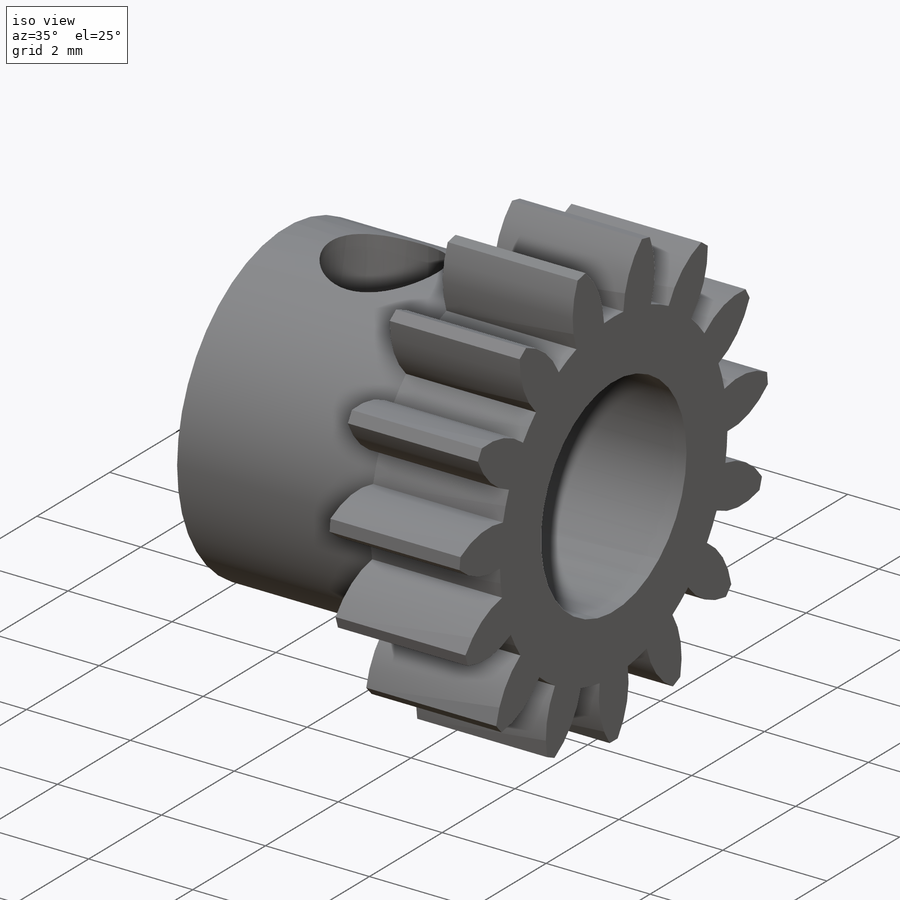
[diagram: iso view]
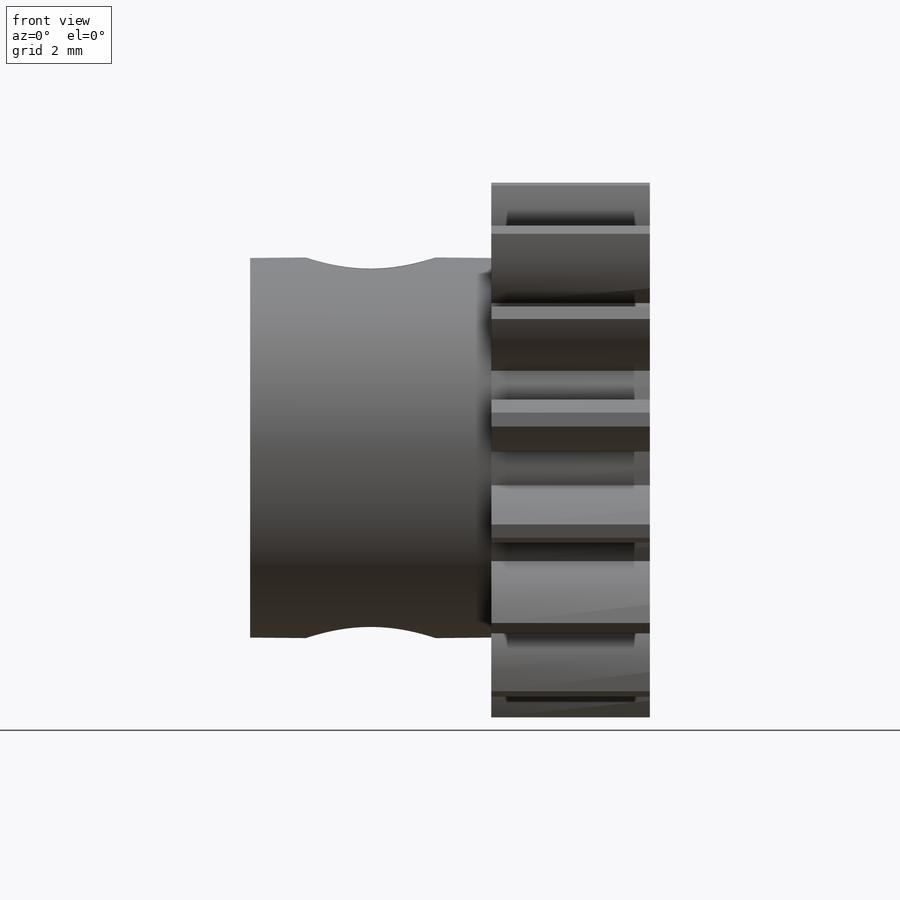
[diagram: front view]
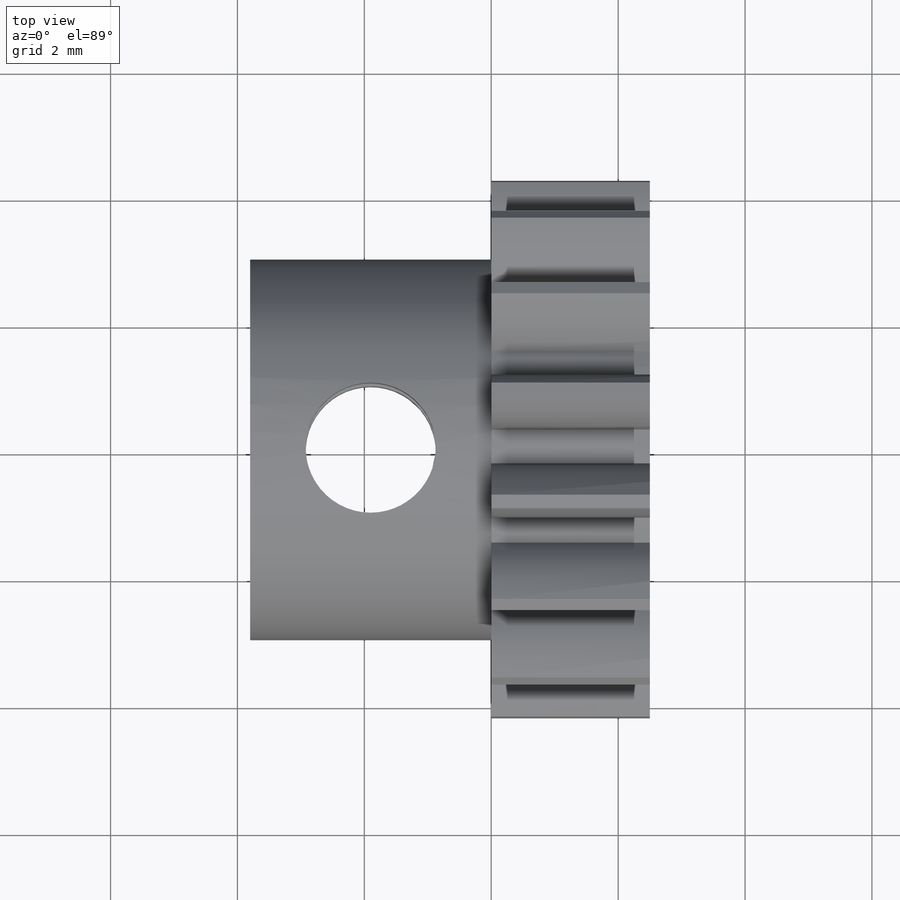
[diagram: top view]
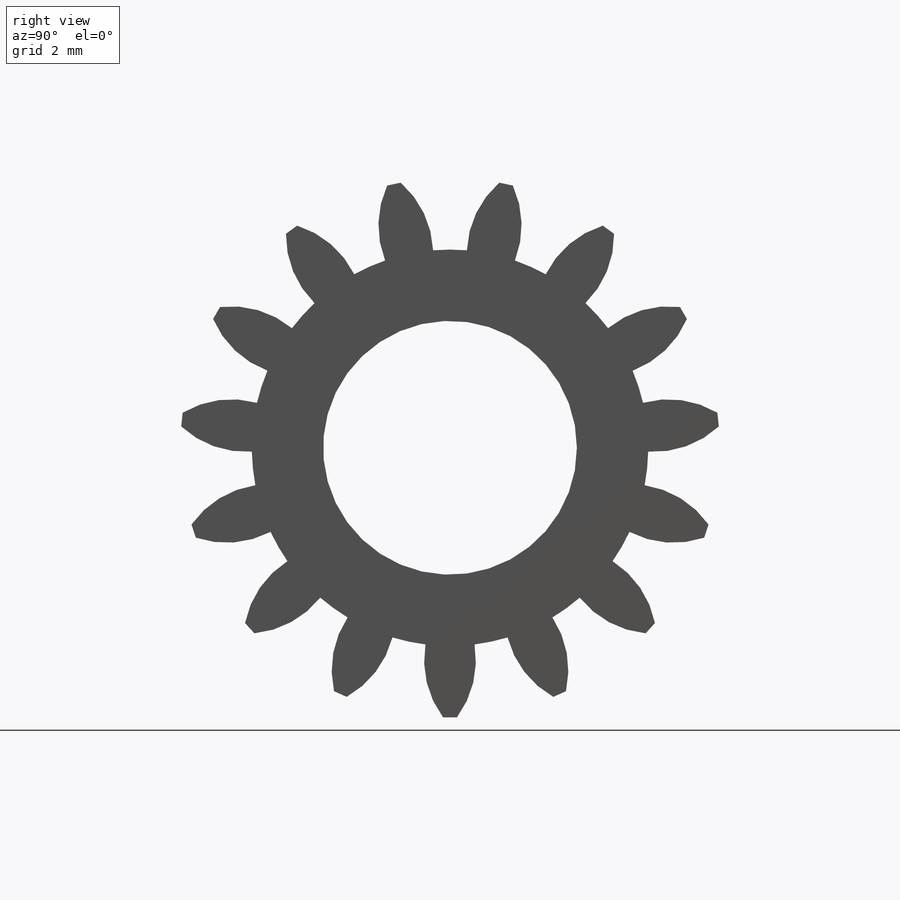
[diagram: right view]
SOLIDWORKS PART (.sldprt)
format: sldprt  version: not decoded by parser v0  size: 563,200 bytes
history: native  units: mm
features: sketch x21, cut_extrude x15, revolve x2, hole x2, material x1, plane x1 (+13 scaffold rows collapsed)
feature tree (55):
  scaffold x13  (default folders/planes/origin — collapsed)
  material  "Plain Carbon Steel"
  plane  "Plane1"
  sketch  "Sketch1"
  revolve  "Revolve1"  Angle=360deg
  sketch  "Sketch2"
  cut_extrude  "Cut-Extrude1"  Depth=2.5mm
  sketch  "Sketch3"
  cut_extrude  "Cut-Extrude2"  Depth=2.5mm
  sketch  "Sketch4"
  cut_extrude  "Cut-Extrude3"  Depth=2.5mm
  sketch  "Sketch5"
  cut_extrude  "Cut-Extrude4"  Depth=2.5mm
  sketch  "Sketch6"
  cut_extrude  "Cut-Extrude5"  Depth=2.5mm
  sketch  "Sketch7"
  cut_extrude  "Cut-Extrude6"  Depth=2.5mm
  sketch  "Sketch8"
  cut_extrude  "Cut-Extrude7"  Depth=2.5mm
  sketch  "Sketch9"
  cut_extrude  "Cut-Extrude8"  Depth=2.5mm
  sketch  "Sketch10"
  cut_extrude  "Cut-Extrude9"  Depth=2.5mm
  sketch  "Sketch11"
  cut_extrude  "Cut-Extrude10"  Depth=2.5mm
  sketch  "Sketch12"
  cut_extrude  "Cut-Extrude11"  Depth=2.5mm
  sketch  "Sketch13"
  cut_extrude  "Cut-Extrude12"  Depth=2.5mm
  sketch  "Sketch14"
  cut_extrude  "Cut-Extrude13"  Depth=2.5mm
  sketch  "Sketch15"
  cut_extrude  "Cut-Extrude14"  Depth=2.5mm
  sketch  "Sketch16"
  cut_extrude  "Cut-Extrude15"  Depth=2.5mm
  sketch  "Sketch17"
  revolve  "Revolve2"  Angle=360deg
  hole  "Ø4.0 (4) Diameter Hole1"  Diameter=4mm Depth=6.300051mm
  sketch  "Sketch19"
  sketch  "Sketch18"  dims[hole-wizard template sketch: 60 standard entries collapsed; hole parameters kept: c18.Thru Hole Depth=~6.300051mm]
  hole  "Tap Drill for M2.5x0.45 Tap1"  Diameter=2.05mm Depth=6mm
  sketch  "3DSketch1"
  sketch  "Sketch20"  dims[hole-wizard template sketch: 47 standard entries collapsed; hole parameters kept: c15.Hole Depth=6.0mm c15.D3=~14.816244mm c15.Drill Angle=180.0deg]
decode coverage: 21 of 40 modeling features carry decoded parameters
note: ~ marks probable driven/reference dimensions
note: suppression state not decoded; provenance and decode notes live in map.json
